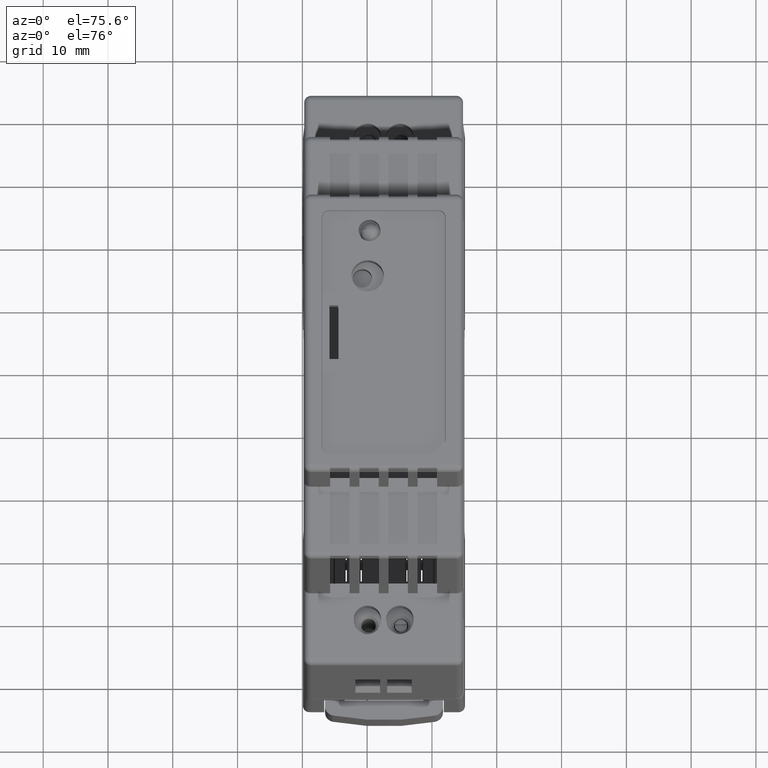
[diagram: clean part render]
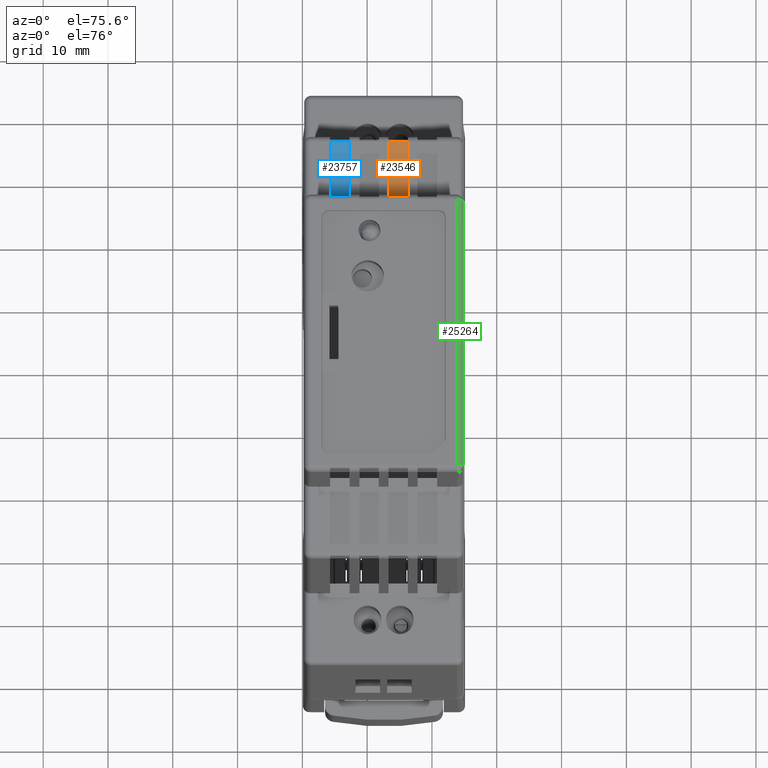
[diagram: same view with three faces highlighted in distinct colors, each labeled with its STEP entity id]
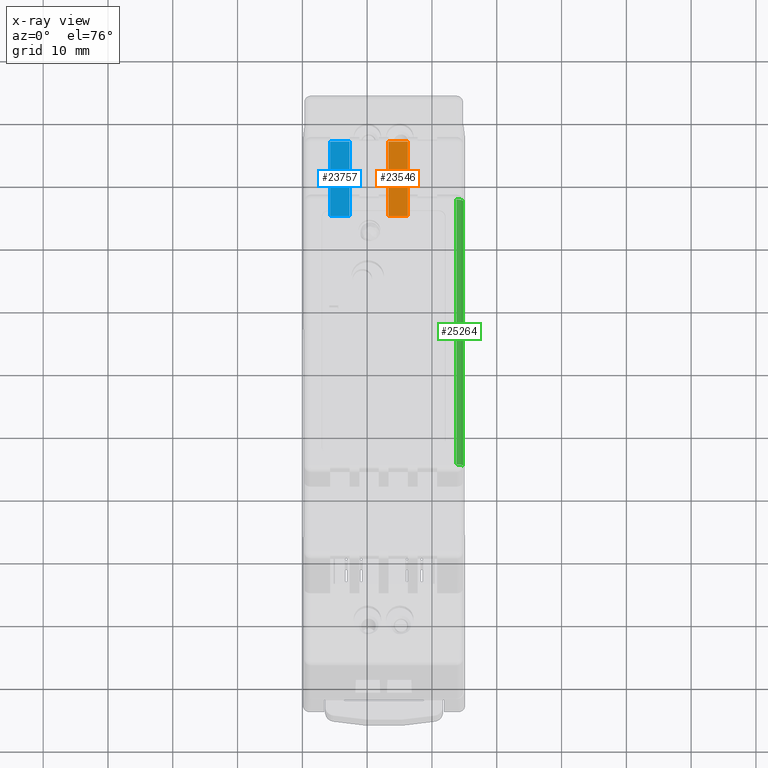
[diagram: x-ray of the same camera — body ghosted, the three highlighted faces saturated]
A machine part, auxiliary view with three faces highlighted in distinct colors.
The next image is the same camera in x-ray (body ghosted, the three faces saturated) — at least one of them is partly hidden behind the body in this view.
Their STEP definitions:

[orange] entity #23546 — the highlighted planar face has unit normal (-0, 0.0175, 0.9998).
#21976=CARTESIAN_POINT('',(3.750000000000000,20.895363448280001,39.0));
#21977=VERTEX_POINT('',#21976);
#21986=CARTESIAN_POINT('',(0.750000000000000,20.895363448280001,39.0));
#21987=VERTEX_POINT('',#21986);
#21988=CARTESIAN_POINT('',(3.750000000000000,20.895363448280001,39.0));
#21989=DIRECTION('',(-1.0,0.0,0.0));
#21990=VECTOR('',#21989,3.0);
#21991=LINE('',#21988,#21990);
#21992=EDGE_CURVE('',#21977,#21987,#21991,.T.);
#22621=CARTESIAN_POINT('',(0.750000000000000,32.793502726130001,38.792317206382492));
#22622=VERTEX_POINT('',#22621);
#22623=CARTESIAN_POINT('',(0.750000000000000,20.895363448280001,39.0));
#22624=DIRECTION('',(0.0,0.999847695156391,-0.017452406437279));
#22625=VECTOR('',#22624,11.899951698132293);
#22626=LINE('',#22623,#22625);
#22627=EDGE_CURVE('',#21987,#22622,#22626,.T.);
#22743=CARTESIAN_POINT('',(3.750000000000000,32.793502726130001,38.792317206382492));
#22744=VERTEX_POINT('',#22743);
#22752=CARTESIAN_POINT('',(3.750000000000000,32.793502726129958,38.792317206379998));
#22753=DIRECTION('',(0.0,-0.999847695156391,0.017452406437279));
#22754=VECTOR('',#22753,11.899951698132297);
#22755=LINE('',#22752,#22754);
#22756=EDGE_CURVE('',#22744,#21977,#22755,.T.);
#23530=CARTESIAN_POINT('',(-0.535477960057900,20.895363448280001,39.0));
#23531=DIRECTION('',(0.0,0.017452406437280,0.999847695156391));
#23532=DIRECTION('',(1.0,0.0,0.0));
#23533=AXIS2_PLACEMENT_3D('',#23530,#23531,#23532);
#23534=PLANE('',#23533);
#23535=CARTESIAN_POINT('',(0.750000000000000,32.793502726130001,38.792317206379998));
#23536=DIRECTION('',(1.0,0.0,0.0));
#23537=VECTOR('',#23536,3.0);
#23538=LINE('',#23535,#23537);
#23539=EDGE_CURVE('',#22622,#22744,#23538,.T.);
#23540=ORIENTED_EDGE('',*,*,#23539,.F.);
#23541=ORIENTED_EDGE('',*,*,#22627,.F.);
#23542=ORIENTED_EDGE('',*,*,#21992,.F.);
#23543=ORIENTED_EDGE('',*,*,#22756,.F.);
#23544=EDGE_LOOP('',(#23540,#23541,#23542,#23543));
#23545=FACE_OUTER_BOUND('',#23544,.T.);
#23546=ADVANCED_FACE('',(#23545),#23534,.T.);

[blue] entity #23757 — the highlighted planar face has unit normal (-0, 0.0175, 0.9998).
#20134=CARTESIAN_POINT('',(-8.250000000000000,20.895363448280001,39.0));
#20135=VERTEX_POINT('',#20134);
#20142=CARTESIAN_POINT('',(-8.250000000000000,32.793502726130001,38.792317206382492));
#20143=VERTEX_POINT('',#20142);
#20144=CARTESIAN_POINT('',(-8.250000000000000,20.895363448280001,39.0));
#20145=DIRECTION('',(0.0,0.999847695156391,-0.017452406437279));
#20146=VECTOR('',#20145,11.899951698132293);
#20147=LINE('',#20144,#20146);
#20148=EDGE_CURVE('',#20135,#20143,#20147,.T.);
#21917=CARTESIAN_POINT('',(-5.250000000000000,20.895363448280001,39.0));
#21918=VERTEX_POINT('',#21917);
#21927=CARTESIAN_POINT('',(-5.250000000000000,20.895363448280001,39.0));
#21928=DIRECTION('',(-1.0,0.0,0.0));
#21929=VECTOR('',#21928,3.0);
#21930=LINE('',#21927,#21929);
#21931=EDGE_CURVE('',#21918,#20135,#21930,.T.);
#22100=CARTESIAN_POINT('',(-5.250000000000000,32.793502726130001,38.792317206382492));
#22101=VERTEX_POINT('',#22100);
#22109=CARTESIAN_POINT('',(-5.250000000000000,32.793502726129958,38.792317206379998));
#22110=DIRECTION('',(0.0,-0.999847695156391,0.017452406437279));
#22111=VECTOR('',#22110,11.899951698132297);
#22112=LINE('',#22109,#22111);
#22113=EDGE_CURVE('',#22101,#21918,#22112,.T.);
#23741=CARTESIAN_POINT('',(-9.535478558977999,20.895363448280001,39.0));
#23742=DIRECTION('',(0.0,0.017452406437280,0.999847695156391));
#23743=DIRECTION('',(1.0,0.0,0.0));
#23744=AXIS2_PLACEMENT_3D('',#23741,#23742,#23743);
#23745=PLANE('',#23744);
#23746=CARTESIAN_POINT('',(-8.250000000000000,32.793502726130001,38.792317206379998));
#23747=DIRECTION('',(1.0,0.0,0.0));
#23748=VECTOR('',#23747,3.0);
#23749=LINE('',#23746,#23748);
#23750=EDGE_CURVE('',#20143,#22101,#23749,.T.);
#23751=ORIENTED_EDGE('',*,*,#23750,.F.);
#23752=ORIENTED_EDGE('',*,*,#20148,.F.);
#23753=ORIENTED_EDGE('',*,*,#21931,.F.);
#23754=ORIENTED_EDGE('',*,*,#22113,.F.);
#23755=EDGE_LOOP('',(#23751,#23752,#23753,#23754));
#23756=FACE_OUTER_BOUND('',#23755,.T.);
#23757=ADVANCED_FACE('',(#23756),#23745,.T.);

[green] entity #25264 — the highlighted cylindrical surface (edge-blend (fillet) strip) has radius 1 mm, axis along (0, 1, -0).
#16995=CARTESIAN_POINT('',(12.250000000000000,21.102340722990004,47.400000000000006));
#16996=VERTEX_POINT('',#16995);
#17005=CARTESIAN_POINT('',(12.250000000000000,-21.102340722990004,47.400000000000006));
#17006=VERTEX_POINT('',#17005);
#17007=CARTESIAN_POINT('',(12.250000000000000,-21.102340722990004,47.400000000000006));
#17008=DIRECTION('',(0.0,1.0,0.0));
#17009=VECTOR('',#17008,42.204681445980007);
#17010=LINE('',#17007,#17009);
#17011=EDGE_CURVE('',#17006,#16996,#17010,.T.);
#17543=CARTESIAN_POINT('',(11.250000000000000,21.102340722990004,48.399999999999999));
#17544=VERTEX_POINT('',#17543);
#17552=CARTESIAN_POINT('',(11.250000000000000,21.102340722990004,47.400000000000006));
#17553=DIRECTION('',(0.0,1.0,0.0));
#17554=DIRECTION('',(1.0,0.0,0.0));
#17555=AXIS2_PLACEMENT_3D('',#17552,#17553,#17554);
#17556=CIRCLE('',#17555,1.0);
#17557=EDGE_CURVE('',#17544,#16996,#17556,.T.);
#17803=CARTESIAN_POINT('',(11.250000000000000,-21.102340722990004,48.399999999999999));
#17804=VERTEX_POINT('',#17803);
#17811=CARTESIAN_POINT('',(11.250000000000000,-21.102340722990004,48.399999999999999));
#17812=DIRECTION('',(0.0,1.0,0.0));
#17813=VECTOR('',#17812,42.204681445980007);
#17814=LINE('',#17811,#17813);
#17815=EDGE_CURVE('',#17804,#17544,#17814,.T.);
#25243=CARTESIAN_POINT('',(11.250000000000000,-21.102340722990004,47.400000000000006));
#25244=DIRECTION('',(0.0,1.0,0.0));
#25245=DIRECTION('',(1.0,0.0,0.0));
#25246=AXIS2_PLACEMENT_3D('',#25243,#25244,#25245);
#25247=CIRCLE('',#25246,1.0);
#25248=EDGE_CURVE('',#17804,#17006,#25247,.T.);
#25253=CARTESIAN_POINT('',(11.250000000000000,-45.268522345619999,47.400000000000006));
#25254=DIRECTION('',(0.0,1.0,0.0));
#25255=DIRECTION('',(0.0,0.0,1.0));
#25256=AXIS2_PLACEMENT_3D('',#25253,#25254,#25255);
#25257=CYLINDRICAL_SURFACE('',#25256,1.0);
#25258=ORIENTED_EDGE('',*,*,#17011,.T.);
#25259=ORIENTED_EDGE('',*,*,#17557,.F.);
#25260=ORIENTED_EDGE('',*,*,#17815,.F.);
#25261=ORIENTED_EDGE('',*,*,#25248,.T.);
#25262=EDGE_LOOP('',(#25258,#25259,#25260,#25261));
#25263=FACE_OUTER_BOUND('',#25262,.T.);
#25264=ADVANCED_FACE('',(#25263),#25257,.T.);